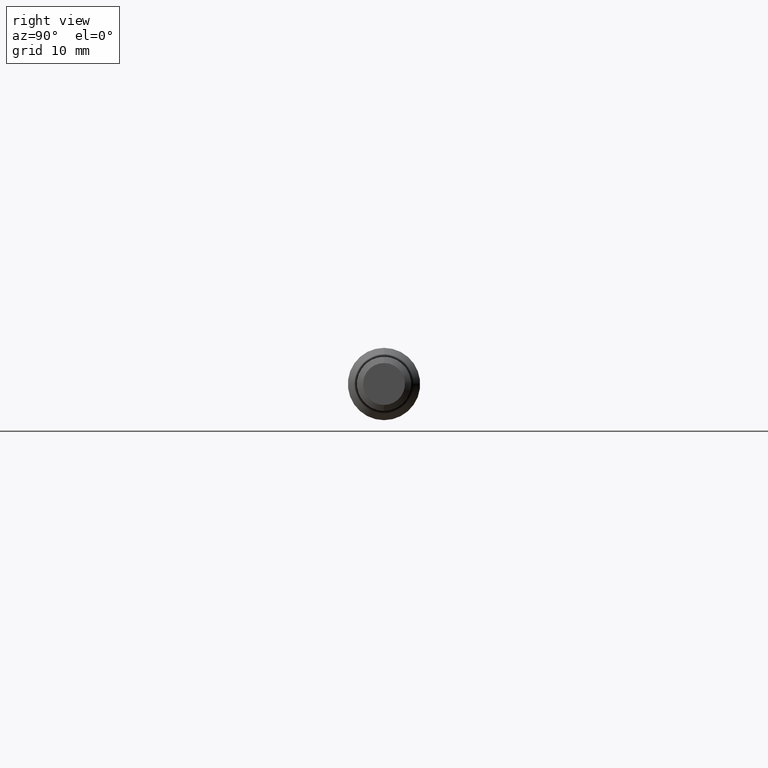
[diagram: clean part render]
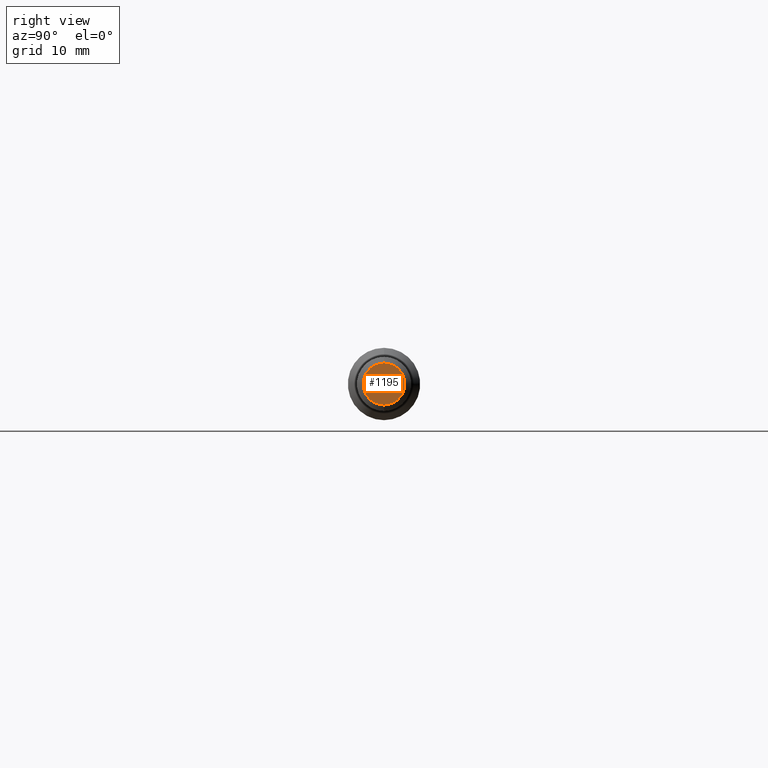
[diagram: same view with one face highlighted and labeled with its STEP entity id]
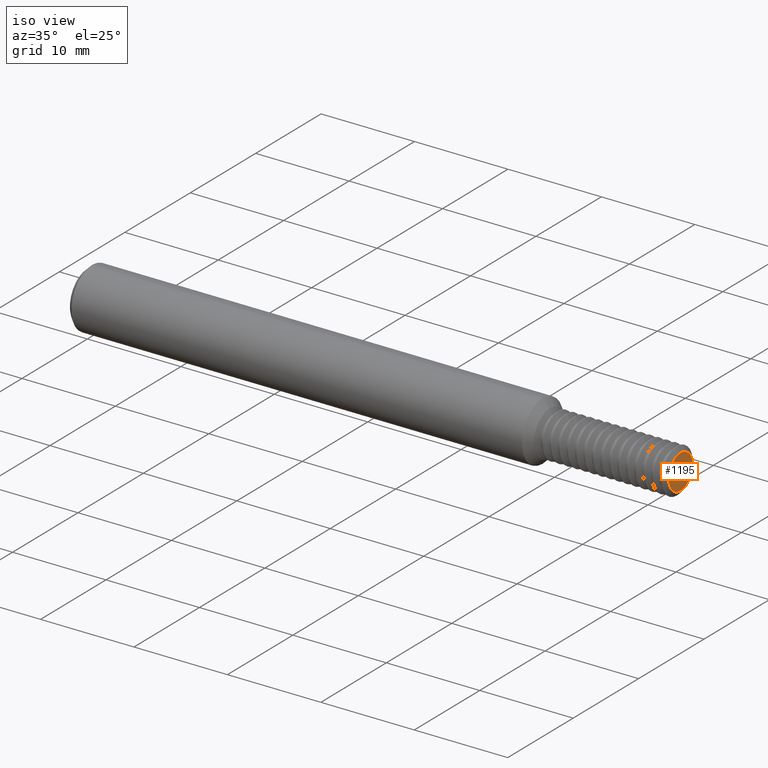
[diagram: same view with one face highlighted and labeled with its STEP entity id]
A machine part, right view. The second image highlights one B-rep face of the part: STEP entity #1195.
A second angle (iso view) of the same face is appended — the face is thin or edge-on in the first view.
In plain terms, the highlighted planar face has unit normal (-1, 0, -0).
Its self-contained STEP definition (entity closure, byte-faithful):
#534 = ORIENTED_EDGE ( 'NONE', *, *, #2517, .F. ) ;
#836 = CARTESIAN_POINT ( 'NONE',  ( 2.500000000000000000, 0.000000000000000000, 0.000000000000000000 ) ) ;
#876 = CARTESIAN_POINT ( 'NONE',  ( 2.500000000000000000, 8.861737526722464976E-18, -0.07236157831704906340 ) ) ;
#1050 = CIRCLE ( 'NONE', #3374, 0.07236157831704906340 ) ;
#1070 = VERTEX_POINT ( 'NONE', #876 ) ;
#1124 = DIRECTION ( 'NONE',  ( -1.000000000000000000, -0.000000000000000000, -0.000000000000000000 ) ) ;
#1129 = DIRECTION ( 'NONE',  ( -1.000000000000000000, -0.000000000000000000, -0.000000000000000000 ) ) ;
#1195 = ADVANCED_FACE ( 'NONE', ( #3049 ), #2456, .F. ) ;
#1408 = DIRECTION ( 'NONE',  ( 0.000000000000000000, 0.000000000000000000, 1.000000000000000000 ) ) ;
#1438 = CARTESIAN_POINT ( 'NONE',  ( 2.500000000000000000, 0.09550000000000000155, 0.000000000000000000 ) ) ;
#1453 = AXIS2_PLACEMENT_3D ( 'NONE', #1438, #3306, #2491 ) ;
#1593 = VERTEX_POINT ( 'NONE', #1681 ) ;
#1673 = CARTESIAN_POINT ( 'NONE',  ( 2.500000000000000000, 0.000000000000000000, 0.000000000000000000 ) ) ;
#1681 = CARTESIAN_POINT ( 'NONE',  ( 2.500000000000000000, 0.000000000000000000, 0.07236157831704906340 ) ) ;
#2456 = PLANE ( 'NONE',  #1453 ) ;
#2468 = DIRECTION ( 'NONE',  ( 0.000000000000000000, 0.000000000000000000, 1.000000000000000000 ) ) ;
#2491 = DIRECTION ( 'NONE',  ( -0.000000000000000000, 0.000000000000000000, 1.000000000000000000 ) ) ;
#2517 = EDGE_CURVE ( 'NONE', #1070, #1593, #3065, .T. ) ;
#2748 = ORIENTED_EDGE ( 'NONE', *, *, #3129, .F. ) ;
#2900 = AXIS2_PLACEMENT_3D ( 'NONE', #1673, #1124, #1408 ) ;
#3049 = FACE_OUTER_BOUND ( 'NONE', #3300, .T. ) ;
#3065 = CIRCLE ( 'NONE', #2900, 0.07236157831704906340 ) ;
#3129 = EDGE_CURVE ( 'NONE', #1593, #1070, #1050, .T. ) ;
#3300 = EDGE_LOOP ( 'NONE', ( #2748, #534 ) ) ;
#3306 = DIRECTION ( 'NONE',  ( -1.000000000000000000, 0.000000000000000000, -0.000000000000000000 ) ) ;
#3374 = AXIS2_PLACEMENT_3D ( 'NONE', #836, #1129, #2468 ) ;